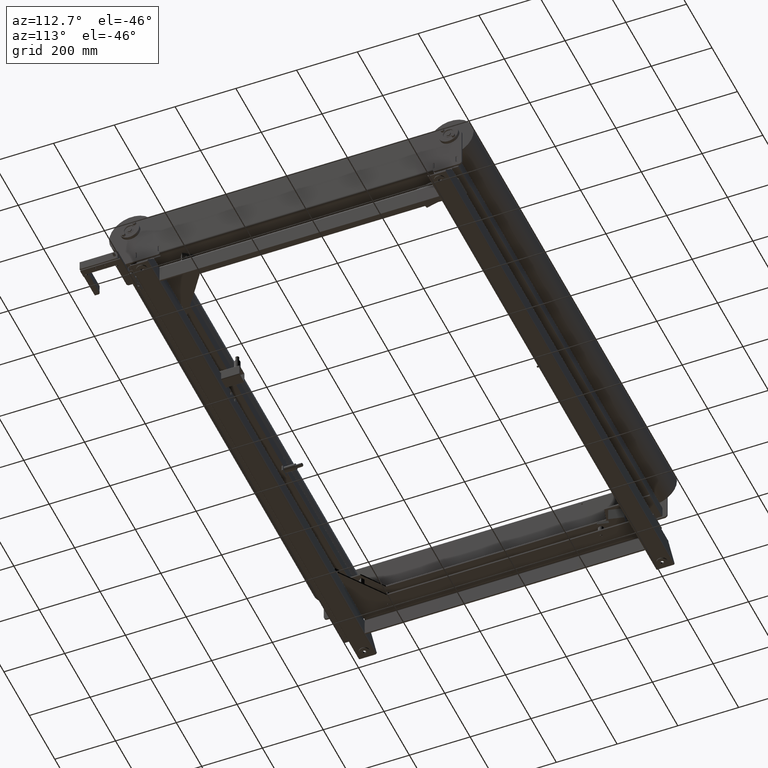
[diagram: clean part render]
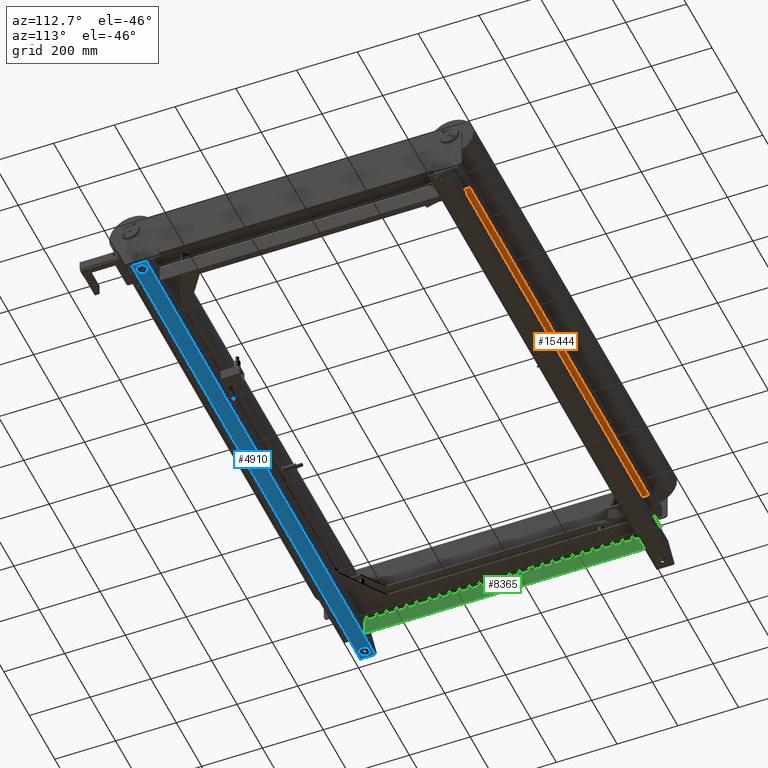
[diagram: same view with three faces highlighted in distinct colors, each labeled with its STEP entity id]
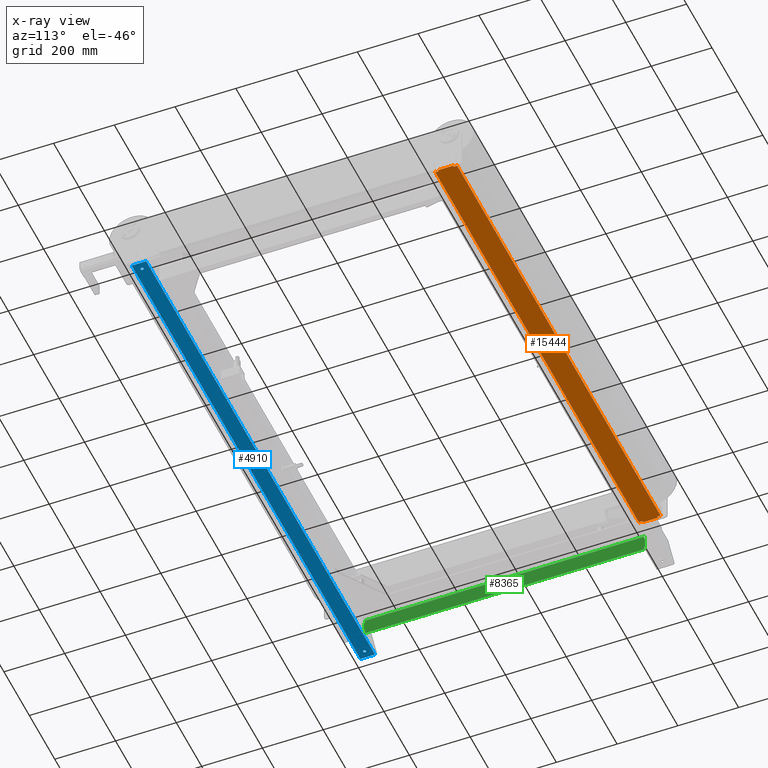
[diagram: x-ray of the same camera — body ghosted, the three highlighted faces saturated]
A machine part, auxiliary view with three faces highlighted in distinct colors.
The next image is the same camera in x-ray (body ghosted, the three faces saturated) — at least one of them is partly hidden behind the body in this view.
Their STEP definitions:

[orange] entity #15444 — the highlighted planar face has unit normal (0, -0, -1).
#14051=CARTESIAN_POINT('',(2011.500000000000000,35.0,-20.000000000000004));
#14052=VERTEX_POINT('',#14051);
#14059=CARTESIAN_POINT('',(2016.500000000000000,35.0,-20.000000000000004));
#14060=VERTEX_POINT('',#14059);
#14061=CARTESIAN_POINT('',(2016.500000000000000,35.0,-20.000000000000004));
#14062=DIRECTION('',(-1.0,0.0,0.0));
#14063=VECTOR('',#14062,5.0);
#14064=LINE('',#14061,#14063);
#14065=EDGE_CURVE('',#14060,#14052,#14064,.T.);
#14091=CARTESIAN_POINT('',(2016.500000000000000,24.999999999999805,-20.000000000000004));
#14092=VERTEX_POINT('',#14091);
#14099=CARTESIAN_POINT('',(2011.500000000000000,24.999999999999805,-20.000000000000004));
#14100=VERTEX_POINT('',#14099);
#14101=CARTESIAN_POINT('',(2011.500000000000000,24.999999999999805,-20.000000000000004));
#14102=DIRECTION('',(1.0,0.0,0.0));
#14103=VECTOR('',#14102,5.0);
#14104=LINE('',#14101,#14103);
#14105=EDGE_CURVE('',#14100,#14092,#14104,.T.);
#14128=CARTESIAN_POINT('',(2011.500000000000000,35.0,-20.000000000000004));
#14129=DIRECTION('',(0.0,-1.0,0.0));
#14130=VECTOR('',#14129,10.000000000000195);
#14131=LINE('',#14128,#14130);
#14132=EDGE_CURVE('',#14052,#14100,#14131,.T.);
#14153=CARTESIAN_POINT('',(405.500000000000000,35.0,-20.000000000000004));
#14154=VERTEX_POINT('',#14153);
#14161=CARTESIAN_POINT('',(410.500000000000000,35.0,-20.000000000000004));
#14162=VERTEX_POINT('',#14161);
#14163=CARTESIAN_POINT('',(410.500000000000000,35.0,-20.000000000000004));
#14164=DIRECTION('',(-1.0,0.0,0.0));
#14165=VECTOR('',#14164,5.0);
#14166=LINE('',#14163,#14165);
#14167=EDGE_CURVE('',#14162,#14154,#14166,.T.);
#14192=CARTESIAN_POINT('',(410.500000000000000,25.0,-20.000000000000004));
#14193=VERTEX_POINT('',#14192);
#14194=CARTESIAN_POINT('',(410.500000000000000,25.0,-20.000000000000004));
#14195=DIRECTION('',(0.0,1.0,0.0));
#14196=VECTOR('',#14195,10.0);
#14197=LINE('',#14194,#14196);
#14198=EDGE_CURVE('',#14193,#14162,#14197,.T.);
#14223=CARTESIAN_POINT('',(405.500000000000000,25.0,-20.000000000000004));
#14224=VERTEX_POINT('',#14223);
#14225=CARTESIAN_POINT('',(405.500000000000000,25.0,-20.000000000000004));
#14226=DIRECTION('',(1.0,0.0,0.0));
#14227=VECTOR('',#14226,5.0);
#14228=LINE('',#14225,#14227);
#14229=EDGE_CURVE('',#14224,#14193,#14228,.T.);
#14255=CARTESIAN_POINT('',(405.500000000000000,-25.0,-20.000000000000004));
#14256=VERTEX_POINT('',#14255);
#14263=CARTESIAN_POINT('',(410.500000000000000,-25.0,-20.000000000000004));
#14264=VERTEX_POINT('',#14263);
#14265=CARTESIAN_POINT('',(410.500000000000000,-25.0,-20.000000000000004));
#14266=DIRECTION('',(-1.0,0.0,0.0));
#14267=VECTOR('',#14266,5.0);
#14268=LINE('',#14265,#14267);
#14269=EDGE_CURVE('',#14264,#14256,#14268,.T.);
#14294=CARTESIAN_POINT('',(410.500000000000000,-35.0,-20.000000000000004));
#14295=VERTEX_POINT('',#14294);
#14296=CARTESIAN_POINT('',(410.500000000000000,-35.0,-20.000000000000004));
#14297=DIRECTION('',(0.0,1.0,0.0));
#14298=VECTOR('',#14297,10.0);
#14299=LINE('',#14296,#14298);
#14300=EDGE_CURVE('',#14295,#14264,#14299,.T.);
#14325=CARTESIAN_POINT('',(405.500000000000000,-35.0,-20.000000000000004));
#14326=VERTEX_POINT('',#14325);
#14327=CARTESIAN_POINT('',(405.500000000000000,-35.0,-20.000000000000004));
#14328=DIRECTION('',(1.0,0.0,0.0));
#14329=VECTOR('',#14328,5.0);
#14330=LINE('',#14327,#14329);
#14331=EDGE_CURVE('',#14326,#14295,#14330,.T.);
#14357=CARTESIAN_POINT('',(2011.500000000000000,-25.0,-20.000000000000004));
#14358=VERTEX_POINT('',#14357);
#14365=CARTESIAN_POINT('',(2016.500000000000000,-25.0,-20.000000000000004));
#14366=VERTEX_POINT('',#14365);
#14367=CARTESIAN_POINT('',(2016.500000000000000,-25.0,-20.000000000000004));
#14368=DIRECTION('',(-1.0,0.0,0.0));
#14369=VECTOR('',#14368,5.0);
#14370=LINE('',#14367,#14369);
#14371=EDGE_CURVE('',#14366,#14358,#14370,.T.);
#14397=CARTESIAN_POINT('',(2016.500000000000000,-35.000000000000213,-20.000000000000004));
#14398=VERTEX_POINT('',#14397);
#14405=CARTESIAN_POINT('',(2011.500000000000000,-35.000000000000199,-20.000000000000004));
#14406=VERTEX_POINT('',#14405);
#14407=CARTESIAN_POINT('',(2011.500000000000000,-35.000000000000199,-20.000000000000004));
#14408=DIRECTION('',(1.0,0.0,0.0));
#14409=VECTOR('',#14408,5.0);
#14410=LINE('',#14407,#14409);
#14411=EDGE_CURVE('',#14406,#14398,#14410,.T.);
#14434=CARTESIAN_POINT('',(2011.500000000000000,-25.0,-20.000000000000004));
#14435=DIRECTION('',(0.0,-1.0,0.0));
#14436=VECTOR('',#14435,10.000000000000199);
#14437=LINE('',#14434,#14436);
#14438=EDGE_CURVE('',#14358,#14406,#14437,.T.);
#14450=CARTESIAN_POINT('',(405.500000000000000,-36.0,-20.000000000000004));
#14451=VERTEX_POINT('',#14450);
#14452=CARTESIAN_POINT('',(405.500000000000000,-35.0,-20.000000000000004));
#14453=DIRECTION('',(0.0,-1.0,0.0));
#14454=VECTOR('',#14453,1.0);
#14455=LINE('',#14452,#14454);
#14456=EDGE_CURVE('',#14326,#14451,#14455,.T.);
#14515=CARTESIAN_POINT('',(405.500000000000000,25.0,-20.000000000000004));
#14516=DIRECTION('',(0.0,-1.0,0.0));
#14517=VECTOR('',#14516,50.0);
#14518=LINE('',#14515,#14517);
#14519=EDGE_CURVE('',#14224,#14256,#14518,.T.);
#14635=CARTESIAN_POINT('',(2016.500000000000000,-36.0,-20.000000000000004));
#14636=VERTEX_POINT('',#14635);
#14644=CARTESIAN_POINT('',(2016.500000000000000,-35.000000000000213,-20.000000000000004));
#14645=DIRECTION('',(0.0,-1.0,0.0));
#14646=VECTOR('',#14645,0.999999999999787);
#14647=LINE('',#14644,#14646);
#14648=EDGE_CURVE('',#14398,#14636,#14647,.T.);
#14659=CARTESIAN_POINT('',(2016.500000000000000,36.0,-20.000000000000004));
#14660=VERTEX_POINT('',#14659);
#14661=CARTESIAN_POINT('',(2016.500000000000000,36.0,-20.000000000000004));
#14662=DIRECTION('',(0.0,-1.0,0.0));
#14663=VECTOR('',#14662,1.0);
#14664=LINE('',#14661,#14663);
#14665=EDGE_CURVE('',#14660,#14060,#14664,.T.);
#14995=CARTESIAN_POINT('',(2016.500000000000000,24.999999999999805,-20.000000000000004));
#14996=DIRECTION('',(0.0,-1.0,0.0));
#14997=VECTOR('',#14996,49.999999999999801);
#14998=LINE('',#14995,#14997);
#14999=EDGE_CURVE('',#14092,#14366,#14998,.T.);
#15320=CARTESIAN_POINT('',(405.500000000000000,36.0,-20.000000000000004));
#15321=VERTEX_POINT('',#15320);
#15329=CARTESIAN_POINT('',(405.500000000000000,36.0,-20.000000000000004));
#15330=DIRECTION('',(0.0,-1.0,0.0));
#15331=VECTOR('',#15330,1.0);
#15332=LINE('',#15329,#15331);
#15333=EDGE_CURVE('',#15321,#14154,#15332,.T.);
#15403=CARTESIAN_POINT('',(405.500000000000000,-36.0,-20.000000000000004));
#15404=DIRECTION('',(1.0,0.0,0.0));
#15405=VECTOR('',#15404,1611.0);
#15406=LINE('',#15403,#15405);
#15407=EDGE_CURVE('',#14451,#14636,#15406,.T.);
#15412=CARTESIAN_POINT('',(405.500000000000000,40.0,-20.000000000000004));
#15413=DIRECTION('',(0.0,0.0,-1.0));
#15414=DIRECTION('',(-1.0,0.0,0.0));
#15415=AXIS2_PLACEMENT_3D('',#15412,#15413,#15414);
#15416=PLANE('',#15415);
#15417=ORIENTED_EDGE('',*,*,#14105,.T.);
#15418=ORIENTED_EDGE('',*,*,#14999,.T.);
#15419=ORIENTED_EDGE('',*,*,#14371,.T.);
#15420=ORIENTED_EDGE('',*,*,#14438,.T.);
#15421=ORIENTED_EDGE('',*,*,#14411,.T.);
#15422=ORIENTED_EDGE('',*,*,#14648,.T.);
#15423=ORIENTED_EDGE('',*,*,#15407,.F.);
#15424=ORIENTED_EDGE('',*,*,#14456,.F.);
#15425=ORIENTED_EDGE('',*,*,#14331,.T.);
#15426=ORIENTED_EDGE('',*,*,#14300,.T.);
#15427=ORIENTED_EDGE('',*,*,#14269,.T.);
#15428=ORIENTED_EDGE('',*,*,#14519,.F.);
#15429=ORIENTED_EDGE('',*,*,#14229,.T.);
#15430=ORIENTED_EDGE('',*,*,#14198,.T.);
#15431=ORIENTED_EDGE('',*,*,#14167,.T.);
#15432=ORIENTED_EDGE('',*,*,#15333,.F.);
#15433=CARTESIAN_POINT('',(2016.500000000000000,36.0,-20.000000000000004));
#15434=DIRECTION('',(-1.0,0.0,0.0));
#15435=VECTOR('',#15434,1611.0);
#15436=LINE('',#15433,#15435);
#15437=EDGE_CURVE('',#14660,#15321,#15436,.T.);
#15438=ORIENTED_EDGE('',*,*,#15437,.F.);
#15439=ORIENTED_EDGE('',*,*,#14665,.T.);
#15440=ORIENTED_EDGE('',*,*,#14065,.T.);
#15441=ORIENTED_EDGE('',*,*,#14132,.T.);
#15442=EDGE_LOOP('',(#15417,#15418,#15419,#15420,#15421,#15422,#15423,#15424,#15425,#15426,#15427,#15428,#15429,#15430,#15431,#15432,#15438,#15439,#15440,#15441));
#15443=FACE_OUTER_BOUND('',#15442,.T.);
#15444=ADVANCED_FACE('',(#15443),#15416,.T.);

[blue] entity #4910 — the highlighted planar face has unit normal (0, -0, -1).
#1441=CARTESIAN_POINT('',(32.000000000000014,1.0,-380.0));
#1442=VERTEX_POINT('',#1441);
#1451=CARTESIAN_POINT('',(32.0,1.000000000000001,-370.0));
#1452=VERTEX_POINT('',#1451);
#1453=CARTESIAN_POINT('',(32.0,1.0,-375.0));
#1454=DIRECTION('',(-1.0,0.0,0.0));
#1455=DIRECTION('',(0.0,0.0,-1.0));
#1456=AXIS2_PLACEMENT_3D('',#1453,#1454,#1455);
#1457=CIRCLE('',#1456,5.0);
#1458=EDGE_CURVE('',#1452,#1442,#1457,.T.);
#1483=CARTESIAN_POINT('',(32.000000000000014,1.0,1370.0));
#1484=VERTEX_POINT('',#1483);
#1493=CARTESIAN_POINT('',(32.0,1.000000000000001,1380.0));
#1494=VERTEX_POINT('',#1493);
#1495=CARTESIAN_POINT('',(32.0,1.0,1375.0));
#1496=DIRECTION('',(-1.0,0.0,0.0));
#1497=DIRECTION('',(0.0,0.0,-1.0));
#1498=AXIS2_PLACEMENT_3D('',#1495,#1496,#1497);
#1499=CIRCLE('',#1498,5.0);
#1500=EDGE_CURVE('',#1494,#1484,#1499,.T.);
#4823=CARTESIAN_POINT('',(32.000000000000014,-23.0,1400.0));
#4824=VERTEX_POINT('',#4823);
#4842=CARTESIAN_POINT('',(32.000000000000014,-23.0,-400.0));
#4843=VERTEX_POINT('',#4842);
#4851=CARTESIAN_POINT('',(32.000000000000014,-23.0,-400.0));
#4852=DIRECTION('',(0.0,0.0,1.0));
#4853=VECTOR('',#4852,1800.0);
#4854=LINE('',#4851,#4853);
#4855=EDGE_CURVE('',#4843,#4824,#4854,.T.);
#4860=CARTESIAN_POINT('',(32.000000000000014,31.0,-400.0));
#4861=DIRECTION('',(1.0,0.0,0.0));
#4862=DIRECTION('',(0.0,0.0,-1.0));
#4863=AXIS2_PLACEMENT_3D('',#4860,#4861,#4862);
#4864=PLANE('',#4863);
#4865=ORIENTED_EDGE('',*,*,#4855,.F.);
#4866=CARTESIAN_POINT('',(32.000000000000014,25.0,-400.0));
#4867=VERTEX_POINT('',#4866);
#4868=CARTESIAN_POINT('',(32.000000000000014,-23.0,-400.0));
#4869=DIRECTION('',(0.0,1.0,0.0));
#4870=VECTOR('',#4869,48.0);
#4871=LINE('',#4868,#4870);
#4872=EDGE_CURVE('',#4843,#4867,#4871,.T.);
#4873=ORIENTED_EDGE('',*,*,#4872,.T.);
#4874=CARTESIAN_POINT('',(32.000000000000014,25.0,1400.0));
#4875=VERTEX_POINT('',#4874);
#4876=CARTESIAN_POINT('',(32.000000000000014,25.0,1400.0));
#4877=DIRECTION('',(0.0,0.0,-1.0));
#4878=VECTOR('',#4877,1800.0);
#4879=LINE('',#4876,#4878);
#4880=EDGE_CURVE('',#4875,#4867,#4879,.T.);
#4881=ORIENTED_EDGE('',*,*,#4880,.F.);
#4882=CARTESIAN_POINT('',(32.000000000000014,25.0,1400.0));
#4883=DIRECTION('',(0.0,-1.0,0.0));
#4884=VECTOR('',#4883,48.0);
#4885=LINE('',#4882,#4884);
#4886=EDGE_CURVE('',#4875,#4824,#4885,.T.);
#4887=ORIENTED_EDGE('',*,*,#4886,.T.);
#4888=EDGE_LOOP('',(#4865,#4873,#4881,#4887));
#4889=FACE_OUTER_BOUND('',#4888,.T.);
#4890=CARTESIAN_POINT('',(32.0,1.0,-375.0));
#4891=DIRECTION('',(-1.0,0.0,0.0));
#4892=DIRECTION('',(0.0,0.0,-1.0));
#4893=AXIS2_PLACEMENT_3D('',#4890,#4891,#4892);
#4894=CIRCLE('',#4893,5.0);
#4895=EDGE_CURVE('',#1442,#1452,#4894,.T.);
#4896=ORIENTED_EDGE('',*,*,#4895,.T.);
#4897=ORIENTED_EDGE('',*,*,#1458,.T.);
#4898=EDGE_LOOP('',(#4896,#4897));
#4899=FACE_BOUND('',#4898,.T.);
#4900=CARTESIAN_POINT('',(32.0,1.0,1375.0));
#4901=DIRECTION('',(-1.0,0.0,0.0));
#4902=DIRECTION('',(0.0,0.0,-1.0));
#4903=AXIS2_PLACEMENT_3D('',#4900,#4901,#4902);
#4904=CIRCLE('',#4903,5.0);
#4905=EDGE_CURVE('',#1484,#1494,#4904,.T.);
#4906=ORIENTED_EDGE('',*,*,#4905,.T.);
#4907=ORIENTED_EDGE('',*,*,#1500,.T.);
#4908=EDGE_LOOP('',(#4906,#4907));
#4909=FACE_BOUND('',#4908,.T.);
#4910=ADVANCED_FACE('',(#4889,#4899,#4909),#4864,.T.);

[green] entity #8365 — the highlighted planar face has unit normal (1, 0, 0).
#7777=CARTESIAN_POINT('',(-85.000000000000071,388.0,45.999999999999908));
#7778=VERTEX_POINT('',#7777);
#7795=CARTESIAN_POINT('',(-85.000000000000071,385.0,45.999999999999908));
#7796=VERTEX_POINT('',#7795);
#7803=CARTESIAN_POINT('',(-85.000000000000071,385.0,45.999999999999908));
#7804=DIRECTION('',(0.0,1.0,0.0));
#7805=VECTOR('',#7804,3.0);
#7806=LINE('',#7803,#7805);
#7807=EDGE_CURVE('',#7796,#7778,#7806,.T.);
#7819=CARTESIAN_POINT('',(-85.000000000000071,388.0,15.999999999999902));
#7820=VERTEX_POINT('',#7819);
#7827=CARTESIAN_POINT('',(-85.000000000000071,385.0,15.999999999999902));
#7828=VERTEX_POINT('',#7827);
#7829=CARTESIAN_POINT('',(-85.000000000000071,385.0,15.999999999999902));
#7830=DIRECTION('',(0.0,1.0,0.0));
#7831=VECTOR('',#7830,3.0);
#7832=LINE('',#7829,#7831);
#7833=EDGE_CURVE('',#7828,#7820,#7832,.T.);
#7858=CARTESIAN_POINT('',(-85.000000000000071,388.0,15.999999999999902));
#7859=DIRECTION('',(0.0,0.0,1.0));
#7860=VECTOR('',#7859,30.000000000000007);
#7861=LINE('',#7858,#7860);
#7862=EDGE_CURVE('',#7820,#7778,#7861,.T.);
#7888=CARTESIAN_POINT('',(-85.000000000000071,385.0,60.999999999999943));
#7889=VERTEX_POINT('',#7888);
#7896=CARTESIAN_POINT('',(-85.000000000000071,385.0,45.999999999999908));
#7897=DIRECTION('',(0.0,0.0,1.0));
#7898=VECTOR('',#7897,15.000000000000036);
#7899=LINE('',#7896,#7898);
#7900=EDGE_CURVE('',#7796,#7889,#7899,.T.);
#7911=CARTESIAN_POINT('',(-85.000000000000071,385.0,5.999999999999943));
#7912=VERTEX_POINT('',#7911);
#7913=CARTESIAN_POINT('',(-85.000000000000071,385.0,5.999999999999943));
#7914=DIRECTION('',(0.0,0.0,1.0));
#7915=VECTOR('',#7914,9.999999999999959);
#7916=LINE('',#7913,#7915);
#7917=EDGE_CURVE('',#7912,#7828,#7916,.T.);
#7961=CARTESIAN_POINT('',(-85.000000000000071,-538.0,45.999999999999943));
#7962=VERTEX_POINT('',#7961);
#7969=CARTESIAN_POINT('',(-85.000000000000071,-535.0,45.999999999999943));
#7970=VERTEX_POINT('',#7969);
#7971=CARTESIAN_POINT('',(-85.000000000000071,-535.0,45.999999999999943));
#7972=DIRECTION('',(0.0,-1.0,0.0));
#7973=VECTOR('',#7972,3.0);
#7974=LINE('',#7971,#7973);
#7975=EDGE_CURVE('',#7970,#7962,#7974,.T.);
#7999=CARTESIAN_POINT('',(-85.000000000000071,-538.0,15.999999999999943));
#8000=VERTEX_POINT('',#7999);
#8017=CARTESIAN_POINT('',(-85.000000000000071,-535.0,15.999999999999943));
#8018=VERTEX_POINT('',#8017);
#8025=CARTESIAN_POINT('',(-85.000000000000071,-535.0,15.999999999999943));
#8026=DIRECTION('',(0.0,-1.0,0.0));
#8027=VECTOR('',#8026,3.0);
#8028=LINE('',#8025,#8027);
#8029=EDGE_CURVE('',#8018,#8000,#8028,.T.);
#8047=CARTESIAN_POINT('',(-85.000000000000071,-538.0,45.999999999999943));
#8048=DIRECTION('',(0.0,0.0,-1.0));
#8049=VECTOR('',#8048,30.0);
#8050=LINE('',#8047,#8049);
#8051=EDGE_CURVE('',#7962,#8000,#8050,.T.);
#8062=CARTESIAN_POINT('',(-85.000000000000071,-535.0,60.999999999999943));
#8063=VERTEX_POINT('',#8062);
#8064=CARTESIAN_POINT('',(-85.000000000000071,-535.0,60.999999999999943));
#8065=DIRECTION('',(0.0,0.0,-1.0));
#8066=VECTOR('',#8065,15.0);
#8067=LINE('',#8064,#8066);
#8068=EDGE_CURVE('',#8063,#7970,#8067,.T.);
#8118=CARTESIAN_POINT('',(-85.000000000000071,-535.0,5.999999999999943));
#8119=VERTEX_POINT('',#8118);
#8127=CARTESIAN_POINT('',(-85.000000000000071,-535.0,15.999999999999943));
#8128=DIRECTION('',(0.0,0.0,-1.0));
#8129=VECTOR('',#8128,10.0);
#8130=LINE('',#8127,#8129);
#8131=EDGE_CURVE('',#8018,#8119,#8130,.T.);
#8234=CARTESIAN_POINT('',(-85.000000000000071,385.0,60.999999999999943));
#8235=DIRECTION('',(0.0,-1.0,0.0));
#8236=VECTOR('',#8235,920.0);
#8237=LINE('',#8234,#8236);
#8238=EDGE_CURVE('',#7889,#8063,#8237,.T.);
#8289=CARTESIAN_POINT('',(-85.000000000000071,385.0,5.999999999999943));
#8290=DIRECTION('',(0.0,-1.0,0.0));
#8291=VECTOR('',#8290,920.0);
#8292=LINE('',#8289,#8291);
#8293=EDGE_CURVE('',#7912,#8119,#8292,.T.);
#8346=CARTESIAN_POINT('',(-85.000000000000071,445.0,0.999999999999943));
#8347=DIRECTION('',(1.0,0.0,0.0));
#8348=DIRECTION('',(0.0,0.0,-1.0));
#8349=AXIS2_PLACEMENT_3D('',#8346,#8347,#8348);
#8350=PLANE('',#8349);
#8351=ORIENTED_EDGE('',*,*,#8068,.T.);
#8352=ORIENTED_EDGE('',*,*,#7975,.T.);
#8353=ORIENTED_EDGE('',*,*,#8051,.T.);
#8354=ORIENTED_EDGE('',*,*,#8029,.F.);
#8355=ORIENTED_EDGE('',*,*,#8131,.T.);
#8356=ORIENTED_EDGE('',*,*,#8293,.F.);
#8357=ORIENTED_EDGE('',*,*,#7917,.T.);
#8358=ORIENTED_EDGE('',*,*,#7833,.T.);
#8359=ORIENTED_EDGE('',*,*,#7862,.T.);
#8360=ORIENTED_EDGE('',*,*,#7807,.F.);
#8361=ORIENTED_EDGE('',*,*,#7900,.T.);
#8362=ORIENTED_EDGE('',*,*,#8238,.T.);
#8363=EDGE_LOOP('',(#8351,#8352,#8353,#8354,#8355,#8356,#8357,#8358,#8359,#8360,#8361,#8362));
#8364=FACE_OUTER_BOUND('',#8363,.T.);
#8365=ADVANCED_FACE('',(#8364),#8350,.T.);